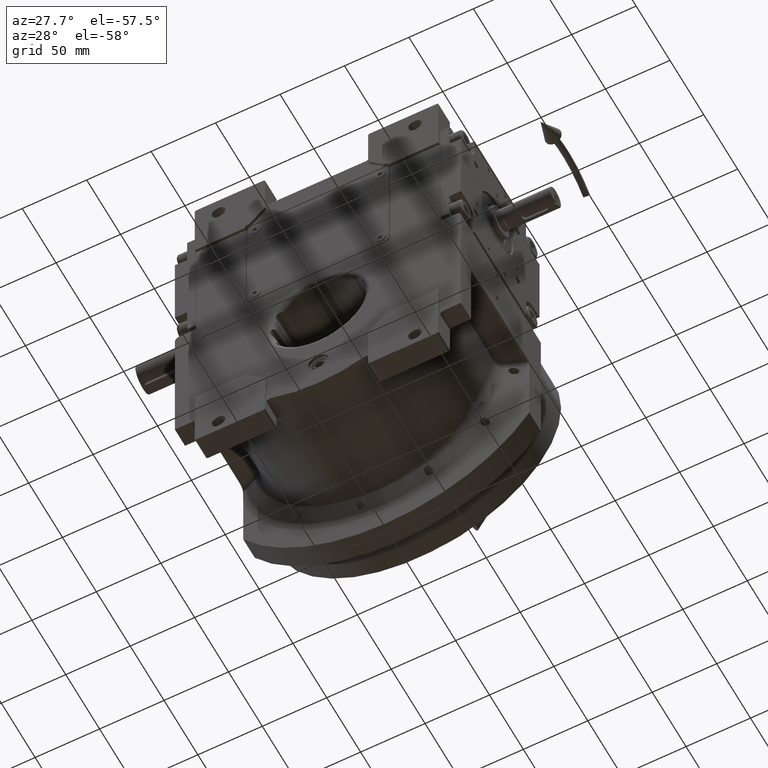
[diagram: clean part render]
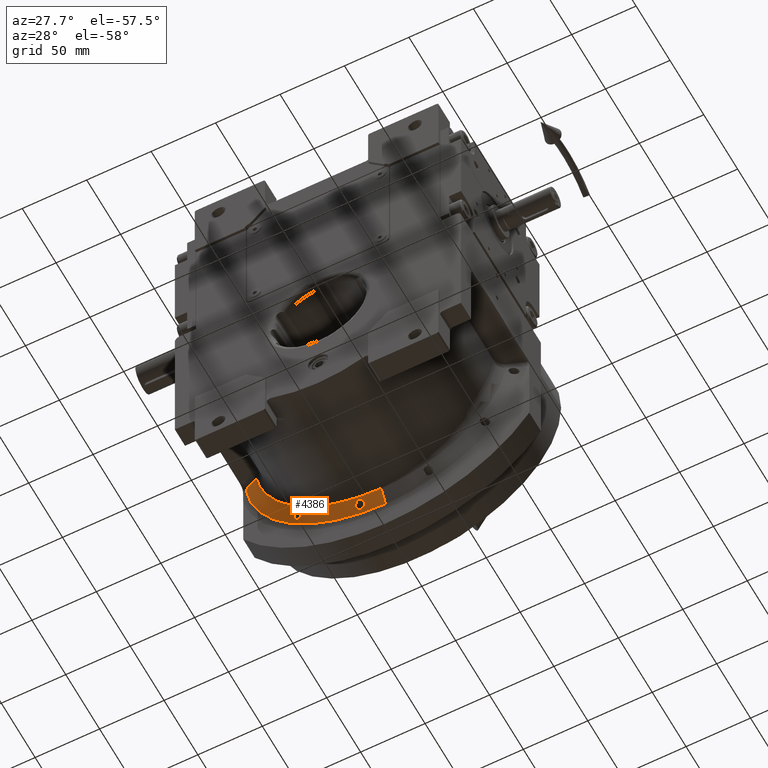
[diagram: same view with one face highlighted and labeled with its STEP entity id]
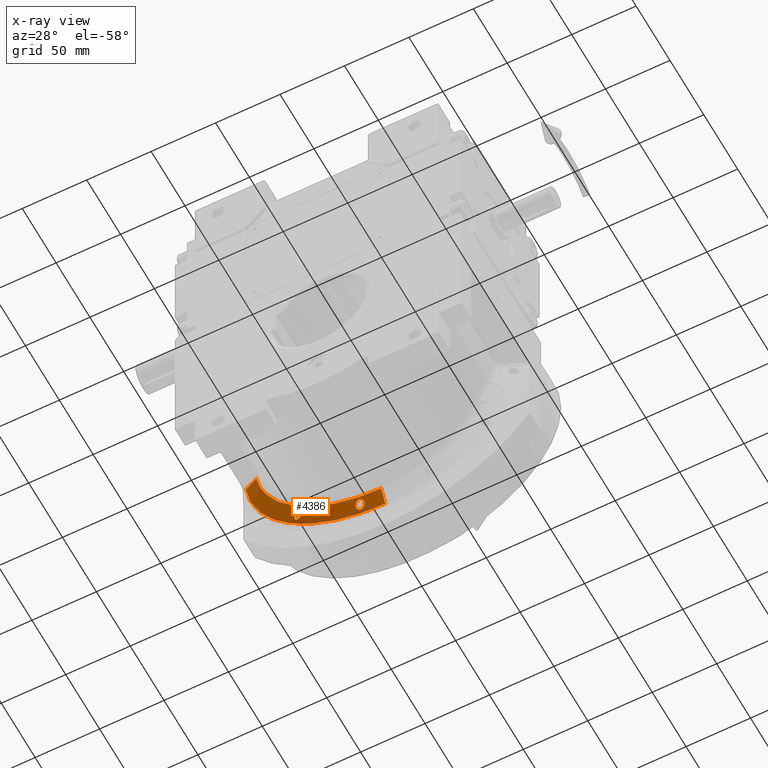
[diagram: x-ray of the same camera — body ghosted, the highlighted face saturated]
A machine part, auxiliary view. The second image highlights one B-rep face of the part: STEP entity #4386.
The next image is the same camera in x-ray: the body ghosted, the highlighted face saturated — about 0% of this face is hidden behind the body in this view.
In plain terms, the highlighted conical surface has half-angle 60 deg.
Its self-contained STEP definition (entity closure, byte-faithful):
#99 = CARTESIAN_POINT ( 'NONE',  ( -16.68307330778149122, 40.83781011218309942, -98.25437498801618119 ) ) ;
#446 = CARTESIAN_POINT ( 'NONE',  ( -18.09331083431307263, 40.85859617777224884, -98.04109495310648015 ) ) ;
#795 = CARTESIAN_POINT ( 'NONE',  ( -15.86143996230702413, 41.01430585587212363, -98.70002577216995121 ) ) ;
#908 = CARTESIAN_POINT ( 'NONE',  ( -21.28576229969385025, 43.13789616174320685, -101.4351985602574047 ) ) ;
#1980 = CARTESIAN_POINT ( 'NONE',  ( -14.50570845870224801, 42.69774368617310500, -101.8544003129921691 ) ) ;
#2068 = CARTESIAN_POINT ( 'NONE',  ( -16.14736164171974409, 40.92851939991503230, -98.50325216349951063 ) ) ;
#2310 = CARTESIAN_POINT ( 'NONE',  ( -14.88239009849064942, 43.40788852445106016, -103.0430006522040287 ) ) ;
#2403 = CARTESIAN_POINT ( 'NONE',  ( -18.89560457488460798, 41.02289223686298669, -98.17965200776311008 ) ) ;
#2477 = CARTESIAN_POINT ( 'NONE',  ( -68.39682589979072702, 42.45573547165578532, -76.29243621763488648 ) ) ;
#2524 = CARTESIAN_POINT ( 'NONE',  ( -69.60712379771349845, 44.04619344483090515, -78.90257764125479412 ) ) ;
#2837 = CARTESIAN_POINT ( 'NONE',  ( -67.29305091126853711, 41.76445607495875834, -75.67290740426270190 ) ) ;
#2890 = CARTESIAN_POINT ( 'NONE',  ( -64.61342865939180058, 43.53034230200678678, -81.90636284041171677 ) ) ;
#3016 = CARTESIAN_POINT ( 'NONE',  ( -21.04165536412680382, 43.82386856158029786, -102.6992293690995695 ) ) ;
#3172 = CARTESIAN_POINT ( 'NONE',  ( -66.98103439492290079, 41.60890245835828694, -75.58954542849022573 ) ) ;
#3220 = CARTESIAN_POINT ( 'NONE',  ( -64.90545150930404361, 43.70041991443495277, -82.05113864408038182 ) ) ;
#3504 = CARTESIAN_POINT ( 'NONE',  ( -64.24701864815639851, 40.80829146050929523, -76.12089171503521356 ) ) ;
#3956 = CARTESIAN_POINT ( 'NONE',  ( -20.41225874826803377, 41.74893943512567773, -99.15960365666485643 ) ) ;
#4047 = CARTESIAN_POINT ( 'NONE',  ( -9.237055564881299892E-14, -16.12399904833045028, -1.000000000000081712 ) ) ;
#4209 = VECTOR ( 'NONE', #25278, 1000.000000000000114 ) ;
#4386 = ADVANCED_FACE ( 'NONE', ( #65367, #6958, #28162 ), #59176, .T. ) ;
#4997 = CARTESIAN_POINT ( 'NONE',  ( -21.11923272435063126, 42.52298233860456378, -100.3818718903396245 ) ) ;
#5333 = CARTESIAN_POINT ( 'NONE',  ( -21.06803777068973105, 42.43558813399067020, -100.2379555580155710 ) ) ;
#5650 = CARTESIAN_POINT ( 'NONE',  ( -19.35750598281732593, 41.18199661363515673, -98.37027750101459844 ) ) ;
#6014 = CARTESIAN_POINT ( 'NONE',  ( -15.72365593661523597, 41.06205274667513550, -98.80584197496871468 ) ) ;
#6370 = CARTESIAN_POINT ( 'NONE',  ( -16.35177585680262879, 40.88427153014217197, -98.39188398362193766 ) ) ;
#6526 = CARTESIAN_POINT ( 'NONE',  ( -17.21478838807860257, 44.59926085442815946, -104.7708600915680108 ) ) ;
#6863 = CARTESIAN_POINT ( 'NONE',  ( -15.95764705290686436, 44.18196428957369193, -104.2385230270173793 ) ) ;
#6958 = FACE_BOUND ( 'NONE', #65378, .T. ) ;
#7431 = CARTESIAN_POINT ( 'NONE',  ( -66.92885746105687872, 44.51160760126284544, -82.22895676595210546 ) ) ;
#7554 = CARTESIAN_POINT ( 'NONE',  ( -14.48666419497512692, 42.57763028470709799, -101.6469742920354093 ) ) ;
#7717 = CARTESIAN_POINT ( 'NONE',  ( -69.02838006662868509, 43.00276300549116115, -76.99872403390141073 ) ) ;
#7764 = CARTESIAN_POINT ( 'NONE',  ( -65.85127273574883588, 44.14564530751782456, -82.28400234946296621 ) ) ;
#7769 = EDGE_LOOP ( 'NONE', ( #49663, #44492, #22019, #38896 ) ) ;
#7891 = CARTESIAN_POINT ( 'NONE',  ( -17.38637426212244819, 44.63320695715444231, -104.8021730608029856 ) ) ;
#8111 = CARTESIAN_POINT ( 'NONE',  ( -63.58120486175232600, 42.77965354232971862, -81.06403058566984043 ) ) ;
#8367 = EDGE_CURVE ( 'NONE', #54287, #40357, #62550, .T. ) ;
#8426 = CARTESIAN_POINT ( 'NONE',  ( -67.71859459580825558, 42.00727331307068368, -75.85695293083811919 ) ) ;
#8755 = CARTESIAN_POINT ( 'NONE',  ( -69.59944930781109917, 43.84506854104964901, -78.44480737441226381 ) ) ;
#9084 = CARTESIAN_POINT ( 'NONE',  ( -63.70267625730842553, 40.81414458692709246, -76.59047803867358084 ) ) ;
#10431 = B_SPLINE_CURVE_WITH_KNOTS ( 'NONE', 3,
 ( #12105, #7554, #1980, #22510, #33641, #64594, #44412, #49652, #18337, #2310, #17982, #44754, #23189, #34332, #33308, #54517, #29095, #54863, #6863, #28072, #55542, #65611, #60063, #49301, #44098, #38176, #6526, #7891, #65287, #27731, #17659, #48956, #13820, #51014, #19712, #67664, #62453, #24237, #40235, #45462, #40921, #30504, #51345, #62116, #36049, #24926, #39888, #66645, #61796, #51707, #35035, #61086, #3016, #13466, #46152, #14479 ),
 .UNSPECIFIED., .F., .F.,
 ( 4, 2, 1, 2, 2, 2, 1, 1, 2, 2, 2, 1, 1, 2, 2, 2, 1, 2, 2, 1, 1, 2, 2, 2, 1, 1, 2, 2, 2, 1, 1, 2, 2, 4 ),
 ( 0.000000000000000000, 0.06249999999999347744, 0.09374999999999225619, 0.1093749999999916872, 0.1249999999999911460, 0.1874999999999814593, 0.2187499999999770461, 0.2343749999999740485, 0.2421874999999714118, 0.2499999999999688027, 0.3124999999999572564, 0.3437499999999524269, 0.3593749999999503175, 0.3671874999999504285, 0.3749999999999504841, 0.4374999999999548694, 0.4687499999999577560, 0.4843749999999595879, 0.4999999999999614753, 0.5624999999999683586, 0.5937499999999721334, 0.6093749999999740208, 0.6249999999999759082, 0.6874999999999871214, 0.7187499999999930056, 0.7343749999999960032, 0.7421874999999971134, 0.7499999999999983347, 0.8124999999999988898, 0.8437499999999997780, 0.8593750000000002220, 0.8671875000000004441, 0.8750000000000005551, 1.000000000000000000 ),
 .UNSPECIFIED. ) ;
#10585 = CARTESIAN_POINT ( 'NONE',  ( -21.28576229969385025, 43.13789616174320685, -101.4351985602574047 ) ) ;
#10832 = CARTESIAN_POINT ( 'NONE',  ( -104.2458755376282511, 43.94632228155251141, -13.01284608142500154 ) ) ;
#11154 = CARTESIAN_POINT ( 'NONE',  ( -108.2181486248951927, 46.16020982646139714, -11.98056577044130044 ) ) ;
#11282 = CARTESIAN_POINT ( 'NONE',  ( -63.11494495267615434, 42.28433410427398087, -80.33939148501819716 ) ) ;
#12023 = CARTESIAN_POINT ( 'NONE',  ( -108.2181486248951927, 46.16020982646139714, -11.98056577044130044 ) ) ;
#12105 = CARTESIAN_POINT ( 'NONE',  ( -14.48576229969382112, 42.45651579625150163, -101.4351985602574047 ) ) ;
#12532 = DIRECTION ( 'NONE',  ( 0.000000000000000000, 0.000000000000000000, -1.000000000000000000 ) ) ;
#12891 = CARTESIAN_POINT ( 'NONE',  ( -19.50531534579709003, 41.24072978416599256, -98.44479798004677207 ) ) ;
#12971 = CARTESIAN_POINT ( 'NONE',  ( -68.83933982942379259, 42.82182288597580566, -76.74729285694229475 ) ) ;
#13216 = CARTESIAN_POINT ( 'NONE',  ( -16.96778701342184803, 40.80998175745905598, -98.15680085979037983 ) ) ;
#13236 = CARTESIAN_POINT ( 'NONE',  ( -14.48576229969382112, 42.45651579625150163, -101.4351985602574047 ) ) ;
#13340 = CARTESIAN_POINT ( 'NONE',  ( -63.68872352311440466, 42.87383470173428890, -81.18701644432728415 ) ) ;
#13466 = CARTESIAN_POINT ( 'NONE',  ( -21.20972011232749210, 43.60209097489686769, -102.2726500134179588 ) ) ;
#13631 = CARTESIAN_POINT ( 'NONE',  ( -68.14583657145338691, 42.27925522923568025, -76.10688848307425758 ) ) ;
#13820 = CARTESIAN_POINT ( 'NONE',  ( -18.39602248147717845, 44.73697642595696777, -104.8125220999484810 ) ) ;
#13898 = ORIENTED_EDGE ( 'NONE', *, *, #14194, .T. ) ;
#13987 = CARTESIAN_POINT ( 'NONE',  ( -68.76969739065823717, 42.75981871087341801, -76.66549293274911747 ) ) ;
#14037 = CARTESIAN_POINT ( 'NONE',  ( -69.31562911541794847, 44.53390166796806682, -80.27819381254568043 ) ) ;
#14194 = EDGE_CURVE ( 'NONE', #58911, #25213, #36509, .T. ) ;
#14311 = CARTESIAN_POINT ( 'NONE',  ( -64.86470266221473935, 40.88449624298377216, -75.76931417373737077 ) ) ;
#14479 = CARTESIAN_POINT ( 'NONE',  ( -21.28576229969385025, 43.13789616174320685, -101.4351985602574047 ) ) ;
#16053 = CARTESIAN_POINT ( 'NONE',  ( -100.4589447431849436, 41.85258171595715027, -13.99357272345444514 ) ) ;
#16065 = CARTESIAN_POINT ( 'NONE',  ( -89.14033501822824235, 39.87903545553515983, -65.00782844006340611 ) ) ;
#16481 = CARTESIAN_POINT ( 'NONE',  ( -18.03590428052120131, 40.85087711241153841, -98.03807942498789885 ) ) ;
#16802 = CARTESIAN_POINT ( 'NONE',  ( -14.74029468243483620, 41.74065502920740300, -100.1454236543688410 ) ) ;
#17539 = CARTESIAN_POINT ( 'NONE',  ( -62.81439731020464734, 41.72724188669391054, -79.34799604412170027 ) ) ;
#17659 = CARTESIAN_POINT ( 'NONE',  ( -17.73583314671017774, 44.68376693007574829, -104.8323296450161308 ) ) ;
#17814 = CARTESIAN_POINT ( 'NONE',  ( -96.85709795745168549, 39.87903522507845366, -14.92320458950059958 ) ) ;
#17982 = CARTESIAN_POINT ( 'NONE',  ( -15.04845669078737380, 43.57542461361651220, -103.3121052074970407 ) ) ;
#18076 = CARTESIAN_POINT ( 'NONE',  ( -15.46708741116452579, 41.17554552792183387, -99.04520887559122855 ) ) ;
#18206 = CARTESIAN_POINT ( 'NONE',  ( -68.44614220625969381, 44.72958614862602644, -81.46407423724764385 ) ) ;
#18337 = CARTESIAN_POINT ( 'NONE',  ( -14.78864147528342166, 43.29175866863392486, -102.8532671433447945 ) ) ;
#18368 = CARTESIAN_POINT ( 'NONE',  ( -62.80712379771359366, 41.52342507202660471, -78.90257764125469464 ) ) ;
#18436 = CARTESIAN_POINT ( 'NONE',  ( -15.50875018745248646, 41.15558517863380672, -99.00369999937544208 ) ) ;
#18513 = CARTESIAN_POINT ( 'NONE',  ( -63.15935403792212810, 40.97343432763176452, -77.39523273953560079 ) ) ;
#18559 = CARTESIAN_POINT ( 'NONE',  ( -65.90604268119497533, 44.16779016119869539, -82.28928753140728247 ) ) ;
#18837 = CARTESIAN_POINT ( 'NONE',  ( -67.49600584932935021, 41.87506605974715512, -75.74868794563492713 ) ) ;
#18888 = CARTESIAN_POINT ( 'NONE',  ( -63.63404868279544502, 42.82636693248890225, -81.12541142282891826 ) ) ;
#19179 = CARTESIAN_POINT ( 'NONE',  ( -65.20379773486391173, 40.96163226148118497, -75.65383477414046354 ) ) ;
#19712 = CARTESIAN_POINT ( 'NONE',  ( -18.97115414708276759, 44.70779545303662417, -104.6581295405401022 ) ) ;
#20672 = CARTESIAN_POINT ( 'NONE',  ( -21.26467281662556985, 42.89495385219974111, -101.0096492284983043 ) ) ;
#20997 = CARTESIAN_POINT ( 'NONE',  ( -20.51538845011924650, 41.82825010524432940, -99.27859909169092134 ) ) ;
#21329 = CARTESIAN_POINT ( 'NONE',  ( -14.72909111186169184, 41.75546887470282797, -100.1730061314239890 ) ) ;
#22019 = ORIENTED_EDGE ( 'NONE', *, *, #40936, .T. ) ;
#22510 = CARTESIAN_POINT ( 'NONE',  ( -14.56200319238054064, 42.87641215788772797, -102.1589670684577982 ) ) ;
#22736 = CARTESIAN_POINT ( 'NONE',  ( -62.80712379771359366, 41.52342507202660471, -78.90257764125469464 ) ) ;
#23189 = CARTESIAN_POINT ( 'NONE',  ( -15.25333824352383161, 43.75040207178881957, -103.5883998608721726 ) ) ;
#23277 = CARTESIAN_POINT ( 'NONE',  ( -15.27328899026993092, 41.27385452186081238, -99.24771501489367154 ) ) ;
#23352 = CARTESIAN_POINT ( 'NONE',  ( -63.54862053458841586, 40.83667992095885779, -76.76898789320883054 ) ) ;
#23395 = CARTESIAN_POINT ( 'NONE',  ( -63.46399101716926339, 42.67163078215280336, -80.91817936349353602 ) ) ;
#23618 = CARTESIAN_POINT ( 'NONE',  ( -19.81200341095583184, 41.38053623416616489, -98.63054741338582687 ) ) ;
#23696 = CARTESIAN_POINT ( 'NONE',  ( -65.12248920160860166, 40.94248948602814409, -75.68010028655007204 ) ) ;
#23753 = CARTESIAN_POINT ( 'NONE',  ( -63.84908069151232013, 43.01011091101933914, -81.36121926178569197 ) ) ;
#24066 = CARTESIAN_POINT ( 'NONE',  ( -64.34507903640626125, 40.81538912432809241, -76.05411956434583942 ) ) ;
#24115 = CARTESIAN_POINT ( 'NONE',  ( -67.20663157078297445, 44.57900473858948232, -82.15286389290443481 ) ) ;
#24237 = CARTESIAN_POINT ( 'NONE',  ( -19.41475688465490279, 44.65331294770840742, -104.4810056941321790 ) ) ;
#24396 = CARTESIAN_POINT ( 'NONE',  ( -68.96826150227877861, 42.94293900535480901, -76.91345645266756037 ) ) ;
#24445 = CARTESIAN_POINT ( 'NONE',  ( -65.10830660749691390, 43.80786087564487730, -82.12791959394272112 ) ) ;
#24671 = VERTEX_POINT ( 'NONE', #13236 ) ;
#24732 = CARTESIAN_POINT ( 'NONE',  ( -63.34765723381097047, 40.89214218333670203, -77.05904806786962524 ) ) ;
#24786 = CARTESIAN_POINT ( 'NONE',  ( -69.15702053396996973, 44.61481230465477665, -80.59974715041026627 ) ) ;
#24926 = CARTESIAN_POINT ( 'NONE',  ( -20.49560609983234727, 44.28609036725635661, -103.6259769247353262 ) ) ;
#25213 = VERTEX_POINT ( 'NONE', #18368 ) ;
#25278 = DIRECTION ( 'NONE',  ( 0.000000000000000000, 0.5000004003414660891, -0.8660251726470620248 ) ) ;
#25371 = B_SPLINE_CURVE_WITH_KNOTS ( 'NONE', 3,
 ( #10585, #31444, #20672, #31808, #63092, #4997, #26223, #47447, #5333, #46069, #41166, #57186, #62371, #20997, #51621, #67253, #3956, #32129, #47766, #23618, #65701, #12891, #32462, #32824, #5650, #44854, #2403, #53330, #34089, #66058, #446, #16481, #28849, #27577, #13216, #48112, #99, #49736, #6370, #2068, #795, #6014, #50062, #18436, #18076, #37668, #23277, #39290, #42920, #34427, #60508, #39648, #16802, #21329, #64112, #26542, #58563 ),
 .UNSPECIFIED., .F., .F.,
 ( 4, 2, 1, 1, 2, 2, 2, 1, 1, 2, 2, 2, 1, 1, 2, 2, 2, 1, 2, 2, 1, 1, 2, 2, 2, 1, 1, 2, 2, 2, 1, 1, 2, 2, 4 ),
 ( 0.000000000000000000, 0.06249999999998914757, 0.09374999999998255562, 0.1093749999999806821, 0.1171874999999786837, 0.1249999999999766853, 0.1874999999999735489, 0.2187499999999719669, 0.2343749999999697187, 0.2421874999999696909, 0.2499999999999696354, 0.3124999999999690248, 0.3437499999999678035, 0.3593749999999670264, 0.3671874999999674150, 0.3749999999999678590, 0.4374999999999742428, 0.4687499999999781286, 0.4843749999999802935, 0.4999999999999824585, 0.5624999999999940048, 0.5937499999999997780, 0.6093750000000032196, 0.6250000000000065503, 0.6875000000000204281, 0.7187500000000257572, 0.7343750000000283107, 0.7421875000000283107, 0.7500000000000283107, 0.8125000000000383027, 0.8437500000000435207, 0.8593750000000445199, 0.8671875000000435207, 0.8750000000000424105, 1.000000000000000000 ),
 .UNSPECIFIED. ) ;
#26223 = CARTESIAN_POINT ( 'NONE',  ( -21.09396469529720264, 42.47888227581890419, -100.3091316150683525 ) ) ;
#26542 = CARTESIAN_POINT ( 'NONE',  ( -14.48469479762536771, 42.21143044104459818, -101.0065443675093633 ) ) ;
#27577 = CARTESIAN_POINT ( 'NONE',  ( -17.37299495985725528, 40.79383213476273795, -98.05786431712239448 ) ) ;
#27731 = CARTESIAN_POINT ( 'NONE',  ( -17.67824520509845598, 44.67650587190777145, -104.8293008482791322 ) ) ;
#27741 = CARTESIAN_POINT ( 'NONE',  ( -9.226961790163737573E-14, 39.87903547113305081, -97.99999599669763484 ) ) ;
#28072 = CARTESIAN_POINT ( 'NONE',  ( -16.09584310531350582, 44.24629050097539107, -104.3300419873280589 ) ) ;
#28162 = FACE_BOUND ( 'NONE', #59079, .T. ) ;
#28293 = VERTEX_POINT ( 'NONE', #908 ) ;
#28692 = EDGE_CURVE ( 'NONE', #25213, #58911, #58326, .T. ) ;
#28849 = CARTESIAN_POINT ( 'NONE',  ( -17.73097330528007731, 40.81449223383904723, -98.02991740592824499 ) ) ;
#28915 = CARTESIAN_POINT ( 'NONE',  ( -66.82312795616010703, 41.53371599020356086, -75.55544187858374983 ) ) ;
#28962 = CARTESIAN_POINT ( 'NONE',  ( -67.76099405477167181, 44.68589003584848030, -81.93691546389598557 ) ) ;
#29095 = CARTESIAN_POINT ( 'NONE',  ( -15.52711586277287203, 43.94838719704101493, -103.8945261759517820 ) ) ;
#29275 = CARTESIAN_POINT ( 'NONE',  ( -66.63557316265840313, 41.45053153927776179, -75.52883555357412604 ) ) ;
#29641 = CARTESIAN_POINT ( 'NONE',  ( -65.48034236420474485, 41.03252004531695007, -75.57725033378187618 ) ) ;
#29692 = CARTESIAN_POINT ( 'NONE',  ( -64.65925856944872407, 43.55754528270143311, -81.93021994396826813 ) ) ;
#29969 = CARTESIAN_POINT ( 'NONE',  ( -66.21423811792537606, 41.27496981589291636, -75.49464004436904929 ) ) ;
#30014 = CARTESIAN_POINT ( 'NONE',  ( -66.76033598893540955, 44.46409153863007901, -82.25981218219514801 ) ) ;
#30504 = CARTESIAN_POINT ( 'NONE',  ( -20.19584969340419889, 44.42595808634818155, -103.9314742084429355 ) ) ;
#31444 = CARTESIAN_POINT ( 'NONE',  ( -21.28449398870388976, 43.01580564899651904, -101.2193921216443044 ) ) ;
#31808 = CARTESIAN_POINT ( 'NONE',  ( -21.20764128211236610, 42.71553423092938573, -100.7040799317437347 ) ) ;
#32043 = CARTESIAN_POINT ( 'NONE',  ( -96.85709795745168549, 39.87903522507845366, -14.92320458950059958 ) ) ;
#32129 = CARTESIAN_POINT ( 'NONE',  ( -20.24195213083298484, 41.62385548680016001, -98.97344874618163146 ) ) ;
#32376 = DIRECTION ( 'NONE',  ( 0.000000000000000000, 1.000000000000000000, 0.000000000000000000 ) ) ;
#32462 = CARTESIAN_POINT ( 'NONE',  ( -19.43106196501958749, 41.21080904760351160, -98.40664260635351468 ) ) ;
#32499 = CARTESIAN_POINT ( 'NONE',  ( -63.20753063041613729, 42.40110194314259218, -80.52382021824632830 ) ) ;
#32824 = CARTESIAN_POINT ( 'NONE',  ( -19.38115713765209591, 41.19113255455904721, -98.38174806882180690 ) ) ;
#33308 = CARTESIAN_POINT ( 'NONE',  ( -15.34037488712204578, 43.81556156169592242, -103.6896300449257069 ) ) ;
#33641 = CARTESIAN_POINT ( 'NONE',  ( -14.59708217568884159, 42.96537098612393635, -102.3096059911111695 ) ) ;
#34089 = CARTESIAN_POINT ( 'NONE',  ( -18.38536429704581820, 40.90473766381333576, -98.06815401260659826 ) ) ;
#34164 = CARTESIAN_POINT ( 'NONE',  ( -68.01611235160906688, 42.19194787382414802, -76.02005988187434582 ) ) ;
#34332 = CARTESIAN_POINT ( 'NONE',  ( -15.30523906203252160, 43.78958099941509374, -103.6493347907393172 ) ) ;
#34427 = CARTESIAN_POINT ( 'NONE',  ( -14.87947116490785504, 41.57852984715079714, -99.84097251891604685 ) ) ;
#34495 = CARTESIAN_POINT ( 'NONE',  ( -69.51818005364366115, 43.63219868441785110, -78.02327286184319632 ) ) ;
#34543 = CARTESIAN_POINT ( 'NONE',  ( -63.66985884709637844, 42.85760206404210493, -81.16608062581808269 ) ) ;
#34845 = CARTESIAN_POINT ( 'NONE',  ( -66.47473322612175650, 41.38229406885031381, -75.51303032982036711 ) ) ;
#34898 = CARTESIAN_POINT ( 'NONE',  ( -69.25267561450084486, 44.56972103369125904, -80.41442999535578906 ) ) ;
#35035 = CARTESIAN_POINT ( 'NONE',  ( -21.00882296343622357, 43.86467474679685807, -102.7780917750895782 ) ) ;
#35251 = CARTESIAN_POINT ( 'NONE',  ( -66.19240968444481155, 44.28072426235181780, -82.31044945415027314 ) ) ;
#35514 = CARTESIAN_POINT ( 'NONE',  ( -63.12128478878985050, 40.99609896814161658, -77.47689744640864262 ) ) ;
#35715 = CARTESIAN_POINT ( 'NONE',  ( -6.107335892911600708E-14, 46.16024936020976099, -108.8793717567185979 ) ) ;
#36049 = CARTESIAN_POINT ( 'NONE',  ( -20.32229869898583985, 44.36936778267003945, -103.8069289162966840 ) ) ;
#36509 = B_SPLINE_CURVE_WITH_KNOTS ( 'NONE', 3,
 ( #40053, #8755, #34495, #66136, #60583, #7717, #24396, #12971, #13987, #50846, #2477, #13631, #34164, #55714, #55378, #40755, #8426, #18837, #2837, #3172, #28915, #29275, #51170, #61257, #34845, #29969, #56076, #50141, #29641, #66809, #19179, #39369, #23696, #14311, #44942, #24066, #3504, #61613, #45295, #9084, #23352, #24732, #61955, #18513, #35514, #65774, #56732, #39727, #60916, #66475 ),
 .UNSPECIFIED., .F., .F.,
 ( 4, 2, 2, 2, 2, 2, 1, 1, 2, 2, 2, 1, 1, 2, 2, 2, 1, 1, 2, 2, 2, 2, 2, 2, 1, 1, 2, 2, 4 ),
 ( 0.000000000000000000, 0.1250000000000126010, 0.1875000000000179856, 0.2187500000000215106, 0.2500000000000250355, 0.3125000000000333622, 0.3437500000000375810, 0.3593750000000397460, 0.3671875000000401346, 0.3750000000000405231, 0.4375000000000418554, 0.4687500000000425771, 0.4843750000000416889, 0.4921875000000395239, 0.5000000000000373035, 0.5625000000000409672, 0.5937500000000415223, 0.6093750000000428546, 0.6171875000000442979, 0.6250000000000457412, 0.6875000000000496270, 0.7187500000000521805, 0.7500000000000546230, 0.8125000000000593969, 0.8437500000000622835, 0.8593750000000613953, 0.8671875000000599520, 0.8750000000000585088, 1.000000000000000000 ),
 .UNSPECIFIED. ) ;
#37590 = CARTESIAN_POINT ( 'NONE',  ( -9.237055564881299892E-14, -16.12399904833045028, -8.171241461241149613E-14 ) ) ;
#37668 = CARTESIAN_POINT ( 'NONE',  ( -15.44515782730545972, 41.18639484296321740, -99.06764912312088711 ) ) ;
#37828 = CARTESIAN_POINT ( 'NONE',  ( -69.60712379771349845, 44.04619344483090515, -78.90257764125479412 ) ) ;
#38176 = CARTESIAN_POINT ( 'NONE',  ( -16.87592498526322160, 44.52199599735879332, -104.6905886229498606 ) ) ;
#38896 = ORIENTED_EDGE ( 'NONE', *, *, #8367, .T. ) ;
#39290 = CARTESIAN_POINT ( 'NONE',  ( -15.13798122035731097, 41.36044991069221055, -99.42011109997082485 ) ) ;
#39369 = CARTESIAN_POINT ( 'NONE',  ( -65.14875795603359165, 40.94856935376207474, -75.67138386566044517 ) ) ;
#39424 = CARTESIAN_POINT ( 'NONE',  ( -68.16347946259398327, 44.72335391706063490, -81.68667453046511184 ) ) ;
#39648 = CARTESIAN_POINT ( 'NONE',  ( -14.76207105432758482, 41.71291943372650479, -100.0936571922661074 ) ) ;
#39727 = CARTESIAN_POINT ( 'NONE',  ( -62.89322788485443283, 41.15352526273451872, -78.01376035383742646 ) ) ;
#39769 = CARTESIAN_POINT ( 'NONE',  ( -67.54522719715143353, 44.65145069251460797, -82.03760044057291623 ) ) ;
#39888 = CARTESIAN_POINT ( 'NONE',  ( -20.63179147859929330, 44.20330385635097059, -103.4526908809163075 ) ) ;
#40053 = CARTESIAN_POINT ( 'NONE',  ( -69.60712379771349845, 44.04619344483090515, -78.90257764125479412 ) ) ;
#40109 = CARTESIAN_POINT ( 'NONE',  ( -65.76939235611618528, 44.11210652336321658, -82.27512015974016890 ) ) ;
#40235 = CARTESIAN_POINT ( 'NONE',  ( -19.61955841385792709, 44.61189838739642965, -104.3697133830653598 ) ) ;
#40357 = VERTEX_POINT ( 'NONE', #59897 ) ;
#40455 = CARTESIAN_POINT ( 'NONE',  ( -65.42146648564371958, 43.95873420119437469, -82.21283163228740420 ) ) ;
#40755 = CARTESIAN_POINT ( 'NONE',  ( -67.74111632397172400, 42.02079216950390617, -75.86823498472526239 ) ) ;
#40921 = CARTESIAN_POINT ( 'NONE',  ( -20.04400066310544659, 44.48641859808112997, -104.0675785357199743 ) ) ;
#40936 = EDGE_CURVE ( 'NONE', #66105, #54287, #61813, .T. ) ;
#41166 = CARTESIAN_POINT ( 'NONE',  ( -20.88604618175581251, 42.17867415054664804, -99.82147949796845410 ) ) ;
#41908 = EDGE_CURVE ( 'NONE', #61052, #66105, #53640, .T. ) ;
#42042 = ORIENTED_EDGE ( 'NONE', *, *, #28692, .T. ) ;
#42920 = CARTESIAN_POINT ( 'NONE',  ( -14.96126561534554433, 41.50362317198955964, -99.69754612150774165 ) ) ;
#44098 = CARTESIAN_POINT ( 'NONE',  ( -16.65576477377504006, 44.45798922382349616, -104.6135469630497710 ) ) ;
#44412 = CARTESIAN_POINT ( 'NONE',  ( -14.67537095696359373, 43.11257204492451223, -102.5559673707499684 ) ) ;
#44492 = ORIENTED_EDGE ( 'NONE', *, *, #41908, .T. ) ;
#44630 = CARTESIAN_POINT ( 'NONE',  ( -67.09574597167642196, 44.55287856368668287, -82.18504234988787971 ) ) ;
#44754 = CARTESIAN_POINT ( 'NONE',  ( -15.13784960877018904, 43.65752798455915951, -103.4427824038960892 ) ) ;
#44854 = CARTESIAN_POINT ( 'NONE',  ( -19.11578677600110865, 41.09078561751286429, -98.25677951409356581 ) ) ;
#44942 = CARTESIAN_POINT ( 'NONE',  ( -64.64903332278667847, 40.84788838230502250, -75.87015528424863930 ) ) ;
#44998 = CARTESIAN_POINT ( 'NONE',  ( -64.00370762632122990, 43.12877342400288683, -81.50114351143491831 ) ) ;
#45295 = CARTESIAN_POINT ( 'NONE',  ( -63.96432609739975561, 40.80200084720957676, -76.34437861805801617 ) ) ;
#45462 = CARTESIAN_POINT ( 'NONE',  ( -19.90598198968850241, 44.53132110200656513, -104.1732168648850205 ) ) ;
#45668 = CARTESIAN_POINT ( 'NONE',  ( -68.70751525441890806, 44.71856507938093017, -81.21901228298945341 ) ) ;
#46014 = CARTESIAN_POINT ( 'NONE',  ( -69.60921372108985850, 44.24267680355247734, -79.35455392805745589 ) ) ;
#46069 = CARTESIAN_POINT ( 'NONE',  ( -20.98053380437553983, 42.29725401803037244, -100.0115089158826720 ) ) ;
#46152 = CARTESIAN_POINT ( 'NONE',  ( -21.28703621184340733, 43.37778208841554317, -101.8594750587018609 ) ) ;
#46493 = LINE ( 'NONE', #4047, #4209 ) ;
#47447 = CARTESIAN_POINT ( 'NONE',  ( -21.07655948565460591, 42.44952094383526031, -100.2608239445140157 ) ) ;
#47766 = CARTESIAN_POINT ( 'NONE',  ( -20.07767688368522485, 41.52133102419982436, -98.82574960627741234 ) ) ;
#48112 = CARTESIAN_POINT ( 'NONE',  ( -16.79663474786736188, 40.82552868253295486, -98.21344451296076272 ) ) ;
#48956 = CARTESIAN_POINT ( 'NONE',  ( -18.03876888054717753, 44.71765732841326013, -104.8404434510402439 ) ) ;
#49301 = CARTESIAN_POINT ( 'NONE',  ( -16.41490999849959564, 44.37192262617112704, -104.5005325385906332 ) ) ;
#49652 = CARTESIAN_POINT ( 'NONE',  ( -14.69234904183704593, 43.14104743672896802, -102.6033608295535942 ) ) ;
#49663 = ORIENTED_EDGE ( 'NONE', *, *, #61187, .F. ) ;
#49736 = CARTESIAN_POINT ( 'NONE',  ( -16.62494767699519116, 40.84514056900765411, -98.27710281745677889 ) ) ;
#50062 = CARTESIAN_POINT ( 'NONE',  ( -15.57188141827978534, 41.12625136255478253, -98.94237495083918077 ) ) ;
#50141 = CARTESIAN_POINT ( 'NONE',  ( -65.64812529342107439, 41.08249569474566698, -75.54620890274522083 ) ) ;
#50188 = CARTESIAN_POINT ( 'NONE',  ( -65.93217163245451218, 44.17822466735806586, -82.29151393330606368 ) ) ;
#50846 = CARTESIAN_POINT ( 'NONE',  ( -68.55287735324341725, 42.57587634206521443, -76.43199053713945545 ) ) ;
#50892 = CARTESIAN_POINT ( 'NONE',  ( -69.52021447572523982, 44.40017289342045359, -79.79522197411236561 ) ) ;
#51014 = CARTESIAN_POINT ( 'NONE',  ( -18.80055132970501930, 44.72215395728382958, -104.7142789570583830 ) ) ;
#51170 = CARTESIAN_POINT ( 'NONE',  ( -66.55447645187153682, 41.41585243786412462, -75.52024901825220127 ) ) ;
#51345 = CARTESIAN_POINT ( 'NONE',  ( -20.25895421612055003, 44.39831624050118108, -103.8703955713336171 ) ) ;
#51621 = CARTESIAN_POINT ( 'NONE',  ( -20.46384103215330796, 41.78809794934888799, -99.21822417469445554 ) ) ;
#51707 = CARTESIAN_POINT ( 'NONE',  ( -20.97532366417316041, 43.90434492157198321, -102.8550672630393876 ) ) ;
#52930 = CARTESIAN_POINT ( 'NONE',  ( -9.226961790163737573E-14, 39.87903547113305081, -97.99999599669763484 ) ) ;
#53330 = CARTESIAN_POINT ( 'NONE',  ( -18.55685797365245548, 40.94082675640963487, -98.09941162123259062 ) ) ;
#53640 =( BOUNDED_CURVE ( )  B_SPLINE_CURVE ( 3, ( #52930, #63341, #16065, #62644 ),
 .UNSPECIFIED., .F., .F. ) 
 B_SPLINE_CURVE_WITH_KNOTS ( ( 4, 4 ),
 ( 3.142973286274644895, 4.560897222382970462 ),
 .UNSPECIFIED. ) 
 CURVE ( )  GEOMETRIC_REPRESENTATION_ITEM ( )  RATIONAL_B_SPLINE_CURVE ( ( 1.000000000000000000, 0.8393587277169034522, 0.8393587277169034522, 1.000000000000000000 ) ) 
 REPRESENTATION_ITEM ( '' )  );
#53701 = CARTESIAN_POINT ( 'NONE',  ( -63.37391937386676943, 42.58071153090598671, -80.78868970775506853 ) ) ;
#54287 = VERTEX_POINT ( 'NONE', #12023 ) ;
#54517 = CARTESIAN_POINT ( 'NONE',  ( -15.35746372829867923, 43.82795239511310115, -103.7087961787889014 ) ) ;
#54863 = CARTESIAN_POINT ( 'NONE',  ( -15.69129399241424316, 44.04692640415015603, -104.0425066127885998 ) ) ;
#55089 = CARTESIAN_POINT ( 'NONE',  ( -66.42122876507963269, 44.36073261308597182, -82.30411895984397574 ) ) ;
#55378 = CARTESIAN_POINT ( 'NONE',  ( -67.78784862725862581, 42.04911731647565176, -75.89227737039405497 ) ) ;
#55426 = CARTESIAN_POINT ( 'NONE',  ( -69.29082736863422554, 44.54848433061275870, -80.33296053711940488 ) ) ;
#55542 = CARTESIAN_POINT ( 'NONE',  ( -16.26584008339917631, 44.31575046781813398, -104.4253884501384135 ) ) ;
#55714 = CARTESIAN_POINT ( 'NONE',  ( -67.85742529607996687, 42.09172163265807853, -75.92907241657195527 ) ) ;
#55768 = CARTESIAN_POINT ( 'NONE',  ( -69.06369080703318275, 44.64581447481833720, -80.75035122830743717 ) ) ;
#56076 = CARTESIAN_POINT ( 'NONE',  ( -65.98596801263296641, 41.19107653462030783, -75.50142769519590047 ) ) ;
#56125 = CARTESIAN_POINT ( 'NONE',  ( -68.35332002664478068, 44.72986898887842244, -81.54261223423003457 ) ) ;
#56457 = CARTESIAN_POINT ( 'NONE',  ( -65.58026375787545703, 44.03159883490280890, -82.24772289056708985 ) ) ;
#56732 = CARTESIAN_POINT ( 'NONE',  ( -63.08391339580369817, 41.02004609416165692, -77.56080104227457639 ) ) ;
#56943 = CARTESIAN_POINT ( 'NONE',  ( -108.2181486248951927, 46.16020982646139714, -11.98056577044130044 ) ) ;
#57186 = CARTESIAN_POINT ( 'NONE',  ( -20.71967630857076870, 42.00738003604246984, -99.55309717966524374 ) ) ;
#57397 = ORIENTED_EDGE ( 'NONE', *, *, #66826, .T. ) ;
#58326 = B_SPLINE_CURVE_WITH_KNOTS ( 'NONE', 3,
 ( #22736, #17539, #58907, #11282, #32499, #53701, #23395, #8111, #18888, #34543, #13340, #23753, #44998, #67206, #60629, #66189, #2890, #29692, #3220, #24445, #40455, #56457, #40109, #7764, #18559, #50188, #35251, #55089, #30014, #7431, #44630, #24115, #61663, #39769, #28962, #65820, #39424, #56125, #18206, #45668, #66860, #55768, #24786, #34898, #55426, #14037, #60965, #50892, #46014, #2524 ),
 .UNSPECIFIED., .F., .F.,
 ( 4, 2, 2, 1, 1, 2, 2, 2, 1, 2, 2, 2, 1, 1, 2, 2, 2, 1, 2, 2, 2, 2, 2, 2, 1, 1, 2, 2, 4 ),
 ( 0.000000000000000000, 0.1250000000000422717, 0.1875000000000629219, 0.2187500000000711098, 0.2343750000000764389, 0.2421875000000786593, 0.2500000000000808797, 0.3125000000000868750, 0.3437500000000894840, 0.3593750000000908718, 0.3750000000000922595, 0.4375000000000970335, 0.4687500000000986433, 0.4843750000000974221, 0.4921875000000952571, 0.5000000000000931477, 0.5625000000000769385, 0.5937500000000691669, 0.6093750000000649480, 0.6250000000000608402, 0.6875000000000526246, 0.7187500000000485167, 0.7500000000000444089, 0.8125000000000389688, 0.8437500000000353051, 0.8593750000000317524, 0.8671875000000296430, 0.8750000000000276446, 1.000000000000000000 ),
 .UNSPECIFIED. ) ;
#58563 = CARTESIAN_POINT ( 'NONE',  ( -14.48576229969382112, 42.45651579625150163, -101.4351985602574047 ) ) ;
#58907 = CARTESIAN_POINT ( 'NONE',  ( -62.89131099387164170, 41.94294624658914472, -79.76299823087541085 ) ) ;
#58911 = VERTEX_POINT ( 'NONE', #37828 ) ;
#59079 = EDGE_LOOP ( 'NONE', ( #64407, #57397 ) ) ;
#59176 = CONICAL_SURFACE ( 'NONE', #68036, 1.000000000000000000, 1.047197088922029673 ) ;
#59897 = CARTESIAN_POINT ( 'NONE',  ( -6.107335892911600708E-14, 46.16024936020976099, -108.8793717567185979 ) ) ;
#60063 = CARTESIAN_POINT ( 'NONE',  ( -16.39080945742552231, 44.36310321183741223, -104.4888525995157380 ) ) ;
#60508 = CARTESIAN_POINT ( 'NONE',  ( -14.79556050282710622, 41.67173104606924028, -100.0166030222071925 ) ) ;
#60566 = EDGE_CURVE ( 'NONE', #28293, #24671, #25371, .T. ) ;
#60583 = CARTESIAN_POINT ( 'NONE',  ( -69.19560774908069334, 43.18003282724071568, -77.26115480791294488 ) ) ;
#60629 = CARTESIAN_POINT ( 'NONE',  ( -64.38391404750127833, 43.38927535313252548, -81.77616167653845025 ) ) ;
#60916 = CARTESIAN_POINT ( 'NONE',  ( -62.80438983608020465, 41.31870101675670526, -78.45153727460031234 ) ) ;
#60965 = CARTESIAN_POINT ( 'NONE',  ( -69.32818544909429193, 44.52608851574825621, -80.24946743667082671 ) ) ;
#61052 = VERTEX_POINT ( 'NONE', #27741 ) ;
#61086 = CARTESIAN_POINT ( 'NONE',  ( -21.03059944355404198, 43.83795414668691848, -102.7263971811898955 ) ) ;
#61187 = EDGE_CURVE ( 'NONE', #61052, #40357, #46493, .T. ) ;
#61257 = CARTESIAN_POINT ( 'NONE',  ( -66.50025254475291092, 41.39294889860050120, -75.51514955326899781 ) ) ;
#61613 = CARTESIAN_POINT ( 'NONE',  ( -64.05729598748679621, 40.80156697721873371, -76.26540628826786872 ) ) ;
#61663 = CARTESIAN_POINT ( 'NONE',  ( -67.25988290382591117, 44.59094884364967015, -82.13601500811972755 ) ) ;
#61796 = CARTESIAN_POINT ( 'NONE',  ( -20.89131294262858063, 43.99403358498545913, -103.0307058737528223 ) ) ;
#61813 = B_SPLINE_CURVE_WITH_KNOTS ( 'NONE', 3,
 ( #32043, #16053, #10832, #11154 ),
 .UNSPECIFIED., .F., .F.,
 ( 4, 4 ),
 ( 0.000000000000000000, 1.000000000000000000 ),
 .UNSPECIFIED. ) ;
#61955 = CARTESIAN_POINT ( 'NONE',  ( -63.25470645955091697, 40.92528812985813857, -77.20965089476800358 ) ) ;
#62116 = CARTESIAN_POINT ( 'NONE',  ( -20.30058444709403176, 44.37950385483397753, -103.8290665792478791 ) ) ;
#62143 = CARTESIAN_POINT ( 'NONE',  ( -101.7990064294248214, 46.16025384316066038, -69.96404336023731219 ) ) ;
#62371 = CARTESIAN_POINT ( 'NONE',  ( -20.63033031947024654, 41.92337690047073551, -99.42307032378499798 ) ) ;
#62453 = CARTESIAN_POINT ( 'NONE',  ( -19.14182508336368116, 44.68970161066344815, -104.5951880476351050 ) ) ;
#62550 =( BOUNDED_CURVE ( )  B_SPLINE_CURVE ( 3, ( #56943, #62143, #63196, #35715 ),
 .UNSPECIFIED., .F., .F. ) 
 B_SPLINE_CURVE_WITH_KNOTS ( ( 4, 4 ),
 ( 4.894359738531879778, 6.354897060524587360 ),
 .UNSPECIFIED. ) 
 CURVE ( )  GEOMETRIC_REPRESENTATION_ITEM ( )  RATIONAL_B_SPLINE_CURVE ( ( 1.000000000000000000, 0.8299968090623841555, 0.8299968090623841555, 1.000000000000000000 ) ) 
 REPRESENTATION_ITEM ( '' )  );
#62644 = CARTESIAN_POINT ( 'NONE',  ( -96.85709795745168549, 39.87903522507845366, -14.92320458950059958 ) ) ;
#63092 = CARTESIAN_POINT ( 'NONE',  ( -21.17229993334808213, 42.62628893877541003, -100.5535551311820797 ) ) ;
#63196 = CARTESIAN_POINT ( 'NONE',  ( -58.33770022237654018, 46.16024937670292871, -108.8793721944054340 ) ) ;
#63341 = CARTESIAN_POINT ( 'NONE',  ( -50.67561381681266397, 39.87903546226575457, -97.99999599352845792 ) ) ;
#64112 = CARTESIAN_POINT ( 'NONE',  ( -14.56338134256172623, 41.98219371904489350, -100.5942625939804742 ) ) ;
#64407 = ORIENTED_EDGE ( 'NONE', *, *, #60566, .T. ) ;
#64594 = CARTESIAN_POINT ( 'NONE',  ( -14.64265084683891693, 43.05376670292849894, -102.4577565763923985 ) ) ;
#65287 = CARTESIAN_POINT ( 'NONE',  ( -17.56108739389980755, 44.66012357116812836, -104.8202205420220707 ) ) ;
#65367 = FACE_OUTER_BOUND ( 'NONE', #7769, .T. ) ;
#65378 = EDGE_LOOP ( 'NONE', ( #13898, #42042 ) ) ;
#65611 = CARTESIAN_POINT ( 'NONE',  ( -16.34057181366540235, 44.34432175079520277, -104.4637949725579631 ) ) ;
#65701 = CARTESIAN_POINT ( 'NONE',  ( -19.67434926625081459, 41.31338681511606126, -98.53953226742360982 ) ) ;
#65774 = CARTESIAN_POINT ( 'NONE',  ( -63.09652565978431227, 41.01165996309254069, -77.53181523845177026 ) ) ;
#65820 = CARTESIAN_POINT ( 'NONE',  ( -68.06527903328293405, 44.71660584721222165, -81.75330711151792684 ) ) ;
#66058 = CARTESIAN_POINT ( 'NONE',  ( -18.21057922783538174, 40.87606404266259830, -98.05015348996006708 ) ) ;
#66105 = VERTEX_POINT ( 'NONE', #17814 ) ;
#66136 = CARTESIAN_POINT ( 'NONE',  ( -69.28958993729051485, 43.29527647019445880, -77.44495037072735499 ) ) ;
#66189 = CARTESIAN_POINT ( 'NONE',  ( -64.52069125341098754, 43.47410091460231740, -81.85543528737092345 ) ) ;
#66475 = CARTESIAN_POINT ( 'NONE',  ( -62.80712379771359366, 41.52342507202660471, -78.90257764125469464 ) ) ;
#66645 = CARTESIAN_POINT ( 'NONE',  ( -20.80927112594839556, 44.06598087751950032, -103.1744245509571130 ) ) ;
#66809 = CARTESIAN_POINT ( 'NONE',  ( -65.28648619756604887, 40.98176596937341998, -75.62859115545653310 ) ) ;
#66826 = EDGE_CURVE ( 'NONE', #24671, #28293, #10431, .T. ) ;
#66860 = CARTESIAN_POINT ( 'NONE',  ( -68.86200656688704669, 44.69762216092903628, -81.04044131007844953 ) ) ;
#67206 = CARTESIAN_POINT ( 'NONE',  ( -64.25410358641379105, 43.30305935057343447, -81.68828093705425886 ) ) ;
#67253 = CARTESIAN_POINT ( 'NONE',  ( -20.42896873382872869, 41.76146683889194122, -99.17831591914084299 ) ) ;
#67664 = CARTESIAN_POINT ( 'NONE',  ( -19.08425922301002942, 44.69644400183336330, -104.6175784297161613 ) ) ;
#68036 = AXIS2_PLACEMENT_3D ( 'NONE', #37590, #32376, #12532 ) ;